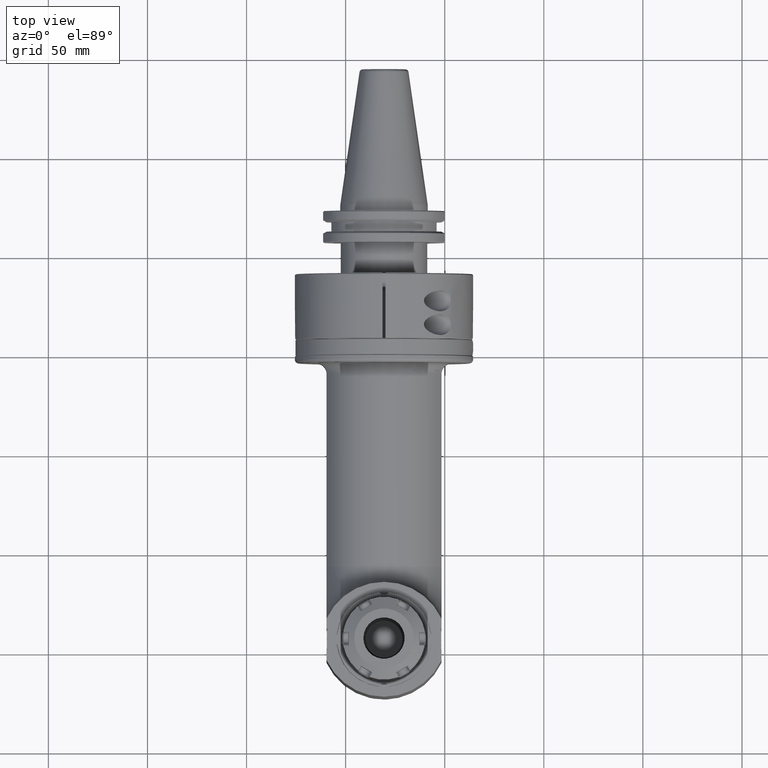
[diagram: clean part render]
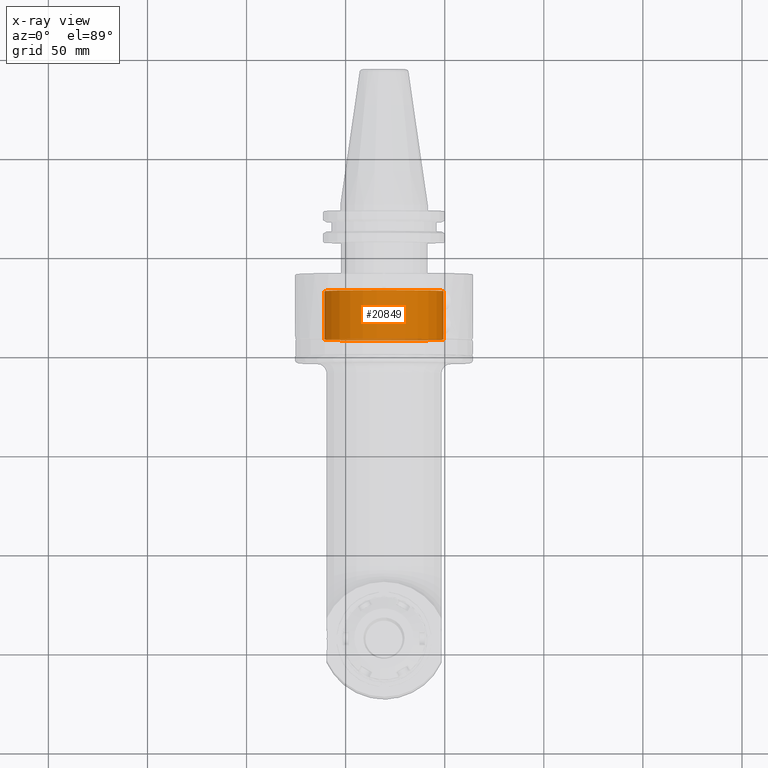
[diagram: x-ray — body ghosted, one internal face saturated and labeled with its STEP entity id]
A machine part, top view, then the same camera in x-ray: the body is ghosted and one INTERNAL B-rep face — a face not visible from any outside direction — is saturated and labeled: STEP entity #20849.
In plain terms, the highlighted cylindrical surface (bore or boss wall) has radius 30 mm, axis along (0, -1, -0).
Its self-contained STEP definition (entity closure, byte-faithful):
#1638=FACE_OUTER_BOUND('',#2881,.T.);
#2881=EDGE_LOOP('',(#15179,#15180,#15181,#15182));
#4212=CIRCLE('',#22243,30.);
#4222=CIRCLE('',#22257,30.);
#5204=LINE('',#32173,#7266);
#7266=VECTOR('',#24934,30.);
#9357=VERTEX_POINT('',#32144);
#9368=VERTEX_POINT('',#32172);
#11584=EDGE_CURVE('',#9357,#9357,#4212,.T.);
#11597=EDGE_CURVE('',#9357,#9368,#5204,.T.);
#11598=EDGE_CURVE('',#9368,#9368,#4222,.T.);
#15179=ORIENTED_EDGE('',*,*,#11584,.T.);
#15180=ORIENTED_EDGE('',*,*,#11597,.T.);
#15181=ORIENTED_EDGE('',*,*,#11598,.T.);
#15182=ORIENTED_EDGE('',*,*,#11597,.F.);
#20508=CYLINDRICAL_SURFACE('',#22256,30.);
#20849=ADVANCED_FACE('',(#1638),#20508,.T.);
#22243=AXIS2_PLACEMENT_3D('',#32145,#24903,#24904);
#22256=AXIS2_PLACEMENT_3D('',#32171,#24932,#24933);
#22257=AXIS2_PLACEMENT_3D('',#32174,#24935,#24936);
#24903=DIRECTION('center_axis',(0.,1.,0.));
#24904=DIRECTION('ref_axis',(1.,0.,0.));
#24932=DIRECTION('center_axis',(0.,-1.,0.));
#24933=DIRECTION('ref_axis',(-1.,0.,0.));
#24934=DIRECTION('',(0.,1.,0.));
#24935=DIRECTION('center_axis',(0.,-1.,0.));
#24936=DIRECTION('ref_axis',(1.,0.,0.));
#32144=CARTESIAN_POINT('',(30.,-25.,3.67394039744206E-15));
#32145=CARTESIAN_POINT('Origin',(0.,-25.,0.));
#32171=CARTESIAN_POINT('Origin',(0.,8.85,0.));
#32172=CARTESIAN_POINT('',(30.,-0.5,3.67394039744206E-15));
#32173=CARTESIAN_POINT('',(30.,8.85,3.67394039744206E-15));
#32174=CARTESIAN_POINT('Origin',(0.,-0.5,0.));